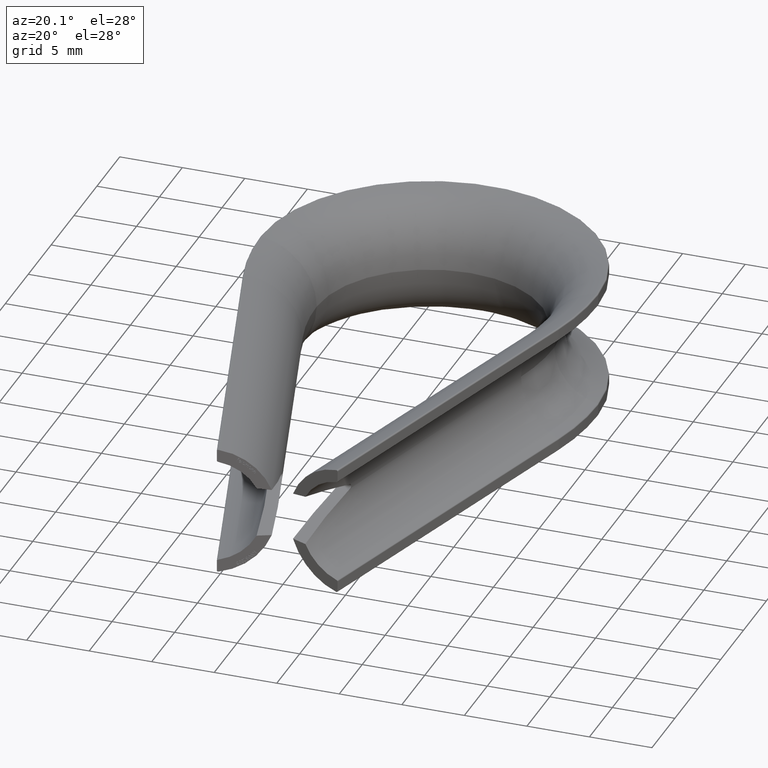
[diagram: clean part render]
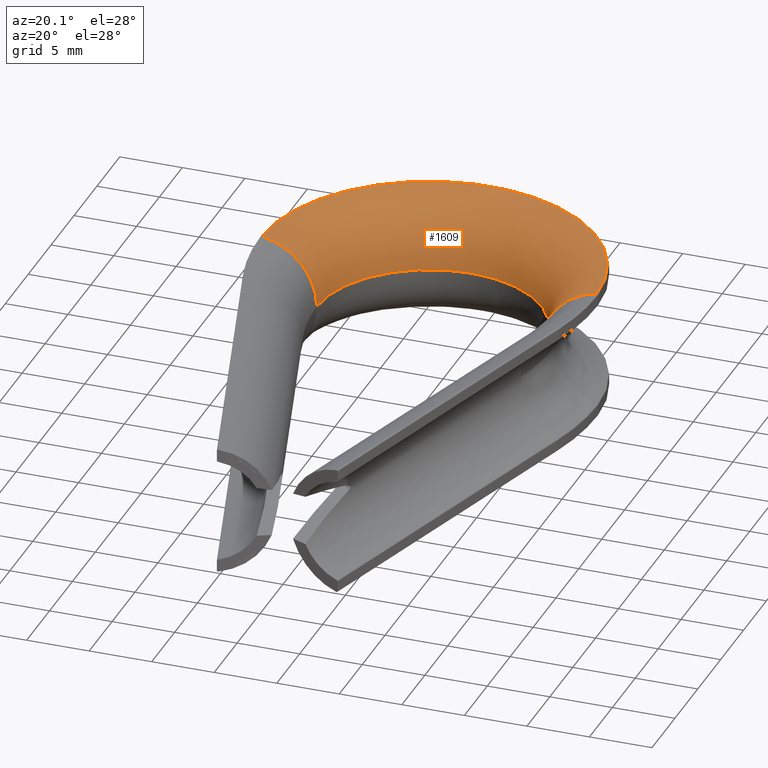
[diagram: same view with one face highlighted and labeled with its STEP entity id]
A machine part, auxiliary view. The second image highlights one B-rep face of the part: STEP entity #1609.
In plain terms, the highlighted toroidal blend (fillet) surface has major radius 14.25 mm and minor (blend) radius 5.25 mm.
Its self-contained STEP definition (entity closure, byte-faithful):
#38 = DIRECTION ( 'NONE',  ( 1.000000000000000000, 0.0000000000000000000, 0.0000000000000000000 ) ) ;
#308 = DIRECTION ( 'NONE',  ( -1.608122649676636600E-016, 1.000000000000000000, -0.0000000000000000000 ) ) ;
#575 = EDGE_CURVE ( 'NONE', #15740, #5240, #7260, .T. ) ;
#1366 = EDGE_CURVE ( 'NONE', #15740, #12419, #6966, .T. ) ;
#1451 = DIRECTION ( 'NONE',  ( 0.0000000000000000000, 0.0000000000000000000, -1.000000000000000000 ) ) ;
#1609 = ADVANCED_FACE ( 'NONE', ( #1753 ), #7545, .T. ) ;
#1753 = FACE_OUTER_BOUND ( 'NONE', #4955, .T. ) ;
#2510 = DIRECTION ( 'NONE',  ( 1.000000000000000000, 0.0000000000000000000, 0.0000000000000000000 ) ) ;
#2662 = CIRCLE ( 'NONE', #10654, 8.999999999999998200 ) ;
#2768 = DIRECTION ( 'NONE',  ( 0.0000000000000000000, 0.0000000000000000000, 1.000000000000000000 ) ) ;
#3099 = CARTESIAN_POINT ( 'NONE',  ( -13.38349514563018900, 32.00000000000000000, 5.177998584139624300 ) ) ;
#3790 = AXIS2_PLACEMENT_3D ( 'NONE', #10055, #5028, #5130 ) ;
#4500 = ORIENTED_EDGE ( 'NONE', *, *, #575, .T. ) ;
#4707 = AXIS2_PLACEMENT_3D ( 'NONE', #12287, #13589, #38 ) ;
#4955 = EDGE_LOOP ( 'NONE', ( #15130, #13744, #4500, #9371 ) ) ;
#5028 = DIRECTION ( 'NONE',  ( -1.608122649676636600E-016, -1.000000000000000000, 0.0000000000000000000 ) ) ;
#5130 = DIRECTION ( 'NONE',  ( 0.0000000000000000000, 0.0000000000000000000, -1.000000000000000000 ) ) ;
#5240 = VERTEX_POINT ( 'NONE', #3099 ) ;
#5992 = VERTEX_POINT ( 'NONE', #12558 ) ;
#6966 = CIRCLE ( 'NONE', #3790, 5.250000000000000000 ) ;
#7260 = CIRCLE ( 'NONE', #8334, 13.38349514563111400 ) ;
#7545 = TOROIDAL_SURFACE ( 'NONE', #4707, 14.24999999999999800, 5.250000000000000000 ) ;
#7562 = DIRECTION ( 'NONE',  ( -1.000000000000000000, 0.0000000000000000000, 0.0000000000000000000 ) ) ;
#7655 = CARTESIAN_POINT ( 'NONE',  ( 8.999999999999998200, 32.00000000000000000, 6.429395695523603200E-016 ) ) ;
#7822 = CARTESIAN_POINT ( 'NONE',  ( -14.24999999999999800, 32.00000000000000000, 0.0000000000000000000 ) ) ;
#8334 = AXIS2_PLACEMENT_3D ( 'NONE', #10154, #2768, #7562 ) ;
#9371 = ORIENTED_EDGE ( 'NONE', *, *, #12326, .T. ) ;
#9746 = DIRECTION ( 'NONE',  ( 0.0000000000000000000, 0.0000000000000000000, 1.000000000000000000 ) ) ;
#10055 = CARTESIAN_POINT ( 'NONE',  ( 14.24999999999999800, 32.00000000000000000, 0.0000000000000000000 ) ) ;
#10145 = AXIS2_PLACEMENT_3D ( 'NONE', #7822, #308, #1451 ) ;
#10154 = CARTESIAN_POINT ( 'NONE',  ( 0.0000000000000000000, 32.00000000000000000, 5.177998584139624300 ) ) ;
#10654 = AXIS2_PLACEMENT_3D ( 'NONE', #16002, #9746, #2510 ) ;
#11129 = EDGE_CURVE ( 'NONE', #12419, #5992, #2662, .T. ) ;
#11689 = CARTESIAN_POINT ( 'NONE',  ( 13.38349514563018900, 32.00000000000000000, 5.177998584139624300 ) ) ;
#11695 = CIRCLE ( 'NONE', #10145, 5.250000000000000000 ) ;
#12287 = CARTESIAN_POINT ( 'NONE',  ( 0.0000000000000000000, 32.00000000000000000, 0.0000000000000000000 ) ) ;
#12326 = EDGE_CURVE ( 'NONE', #5240, #5992, #11695, .T. ) ;
#12419 = VERTEX_POINT ( 'NONE', #7655 ) ;
#12558 = CARTESIAN_POINT ( 'NONE',  ( -8.999999999999998200, 32.00000000000000000, -6.429395695523603200E-016 ) ) ;
#13589 = DIRECTION ( 'NONE',  ( 0.0000000000000000000, 0.0000000000000000000, 1.000000000000000000 ) ) ;
#13744 = ORIENTED_EDGE ( 'NONE', *, *, #1366, .F. ) ;
#15130 = ORIENTED_EDGE ( 'NONE', *, *, #11129, .F. ) ;
#15740 = VERTEX_POINT ( 'NONE', #11689 ) ;
#16002 = CARTESIAN_POINT ( 'NONE',  ( 0.0000000000000000000, 32.00000000000000000, -6.429395695523604200E-016 ) ) ;